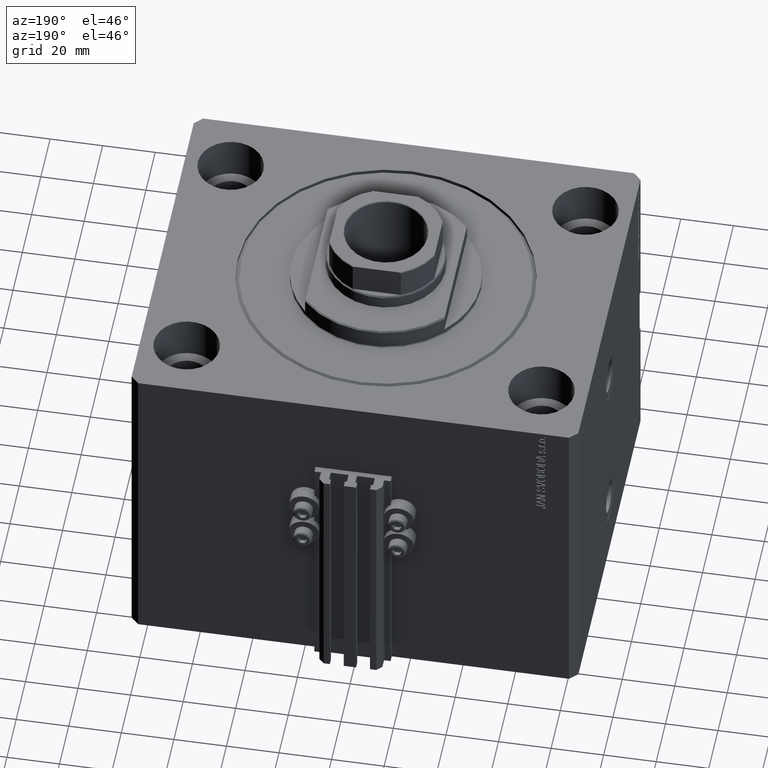
[diagram: clean part render]
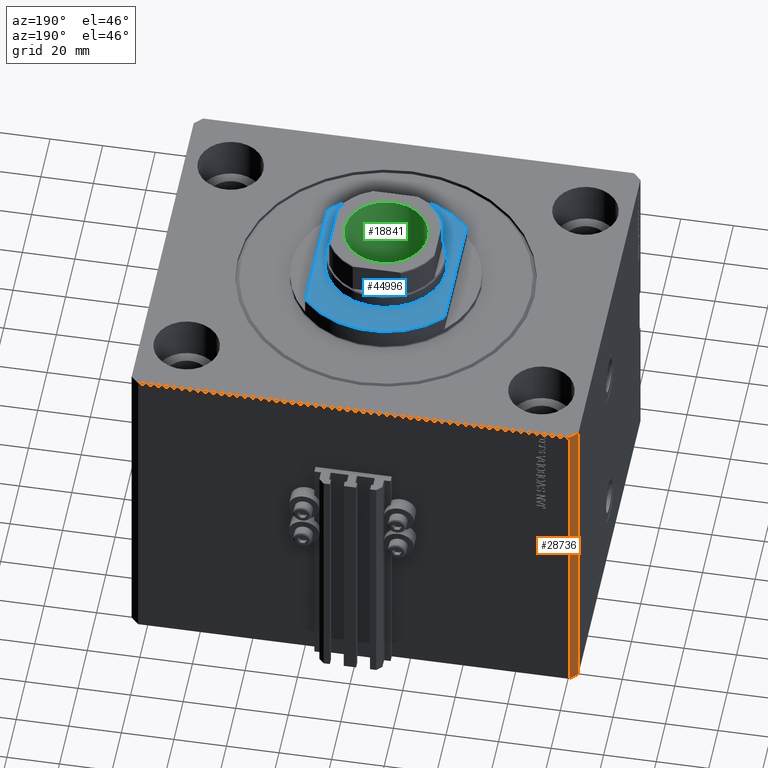
[diagram: same view with three faces highlighted in distinct colors, each labeled with its STEP entity id]
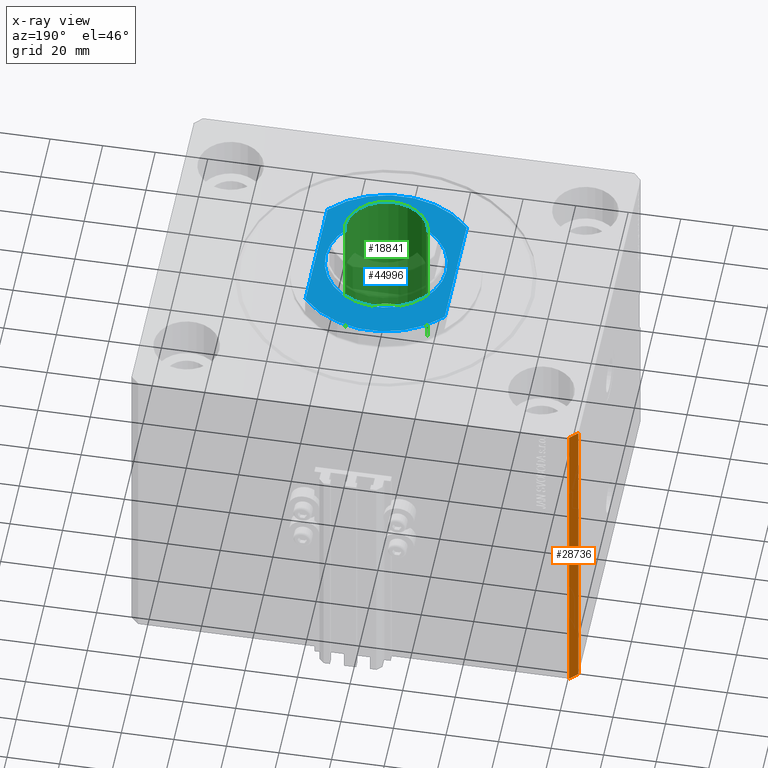
[diagram: x-ray of the same camera — body ghosted, the three highlighted faces saturated]
A machine part, auxiliary view with three faces highlighted in distinct colors.
The next image is the same camera in x-ray (body ghosted, the three faces saturated) — at least one of them is partly hidden behind the body in this view.
Their STEP definitions:

[orange] entity #28736 — the highlighted planar face has unit normal (-0.7071, 0.7071, 0).
#144 = EDGE_LOOP ( 'NONE', ( #18318, #41350, #44819, #2580 ) ) ;
#514 = VERTEX_POINT ( 'NONE', #37268 ) ;
#2580 = ORIENTED_EDGE ( 'NONE', *, *, #29358, .T. ) ;
#3191 = CARTESIAN_POINT ( 'NONE',  ( -82.00000000000000000, 70.00000000000000000, -130.0000000000000000 ) ) ;
#3487 = CARTESIAN_POINT ( 'NONE',  ( -82.00000000000000000, 70.00000000000000000, 0.000000000000000000 ) ) ;
#5124 = DIRECTION ( 'NONE',  ( -0.7071067811865474617, -0.7071067811865474617, 0.000000000000000000 ) ) ;
#12799 = CARTESIAN_POINT ( 'NONE',  ( -82.00000000000000000, 70.00000000000000000, -130.0000000000000000 ) ) ;
#14718 = VERTEX_POINT ( 'NONE', #27319 ) ;
#15348 = VERTEX_POINT ( 'NONE', #3487 ) ;
#15551 = LINE ( 'NONE', #15795, #26975 ) ;
#15795 = CARTESIAN_POINT ( 'NONE',  ( -85.00000000000000000, 67.00000000000000000, -130.0000000000000000 ) ) ;
#18318 = ORIENTED_EDGE ( 'NONE', *, *, #28681, .F. ) ;
#19146 = AXIS2_PLACEMENT_3D ( 'NONE', #38679, #20300, #5124 ) ;
#19576 = DIRECTION ( 'NONE',  ( -0.7071067811865474617, -0.7071067811865474617, 0.000000000000000000 ) ) ;
#20300 = DIRECTION ( 'NONE',  ( -0.7071067811865475727, 0.7071067811865475727, 0.000000000000000000 ) ) ;
#20547 = FACE_OUTER_BOUND ( 'NONE', #144, .T. ) ;
#23816 = DIRECTION ( 'NONE',  ( -0.7071067811865474617, -0.7071067811865474617, 0.000000000000000000 ) ) ;
#24626 = VECTOR ( 'NONE', #19576, 1000.000000000000114 ) ;
#26975 = VECTOR ( 'NONE', #30745, 1000.000000000000000 ) ;
#27319 = CARTESIAN_POINT ( 'NONE',  ( -85.00000000000000000, 67.00000000000000000, -130.0000000000000000 ) ) ;
#27742 = VECTOR ( 'NONE', #34709, 1000.000000000000000 ) ;
#28681 = EDGE_CURVE ( 'NONE', #15348, #514, #31820, .T. ) ;
#28736 = ADVANCED_FACE ( 'NONE', ( #20547 ), #46519, .T. ) ;
#29017 = EDGE_CURVE ( 'NONE', #30934, #15348, #46216, .T. ) ;
#29358 = EDGE_CURVE ( 'NONE', #14718, #514, #15551, .T. ) ;
#30745 = DIRECTION ( 'NONE',  ( 0.000000000000000000, 0.000000000000000000, 1.000000000000000000 ) ) ;
#30934 = VERTEX_POINT ( 'NONE', #3191 ) ;
#31820 = LINE ( 'NONE', #46762, #24626 ) ;
#34468 = CARTESIAN_POINT ( 'NONE',  ( -82.00000000000000000, 70.00000000000000000, -130.0000000000000000 ) ) ;
#34709 = DIRECTION ( 'NONE',  ( 0.000000000000000000, 0.000000000000000000, 1.000000000000000000 ) ) ;
#37268 = CARTESIAN_POINT ( 'NONE',  ( -85.00000000000000000, 67.00000000000000000, 0.000000000000000000 ) ) ;
#37814 = VECTOR ( 'NONE', #23816, 1000.000000000000114 ) ;
#38679 = CARTESIAN_POINT ( 'NONE',  ( -82.00000000000000000, 70.00000000000000000, -130.0000000000000000 ) ) ;
#41350 = ORIENTED_EDGE ( 'NONE', *, *, #29017, .F. ) ;
#44819 = ORIENTED_EDGE ( 'NONE', *, *, #47603, .T. ) ;
#45872 = LINE ( 'NONE', #12799, #37814 ) ;
#46216 = LINE ( 'NONE', #34468, #27742 ) ;
#46519 = PLANE ( 'NONE',  #19146 ) ;
#46762 = CARTESIAN_POINT ( 'NONE',  ( -82.00000000000000000, 70.00000000000000000, 0.000000000000000000 ) ) ;
#47603 = EDGE_CURVE ( 'NONE', #30934, #14718, #45872, .T. ) ;

[blue] entity #44996 — the highlighted planar face has unit normal (0, 0, 1).
#92 = ORIENTED_EDGE ( 'NONE', *, *, #31996, .T. ) ;
#713 = VERTEX_POINT ( 'NONE', #40898 ) ;
#1130 = CARTESIAN_POINT ( 'NONE',  ( 0.000000000000000000, 0.000000000000000000, -8.000000000000000000 ) ) ;
#1260 = CARTESIAN_POINT ( 'NONE',  ( -26.50000000000000000, 23.62202362203536765, -8.000000000000000000 ) ) ;
#2184 = LINE ( 'NONE', #6359, #25236 ) ;
#2801 = CARTESIAN_POINT ( 'NONE',  ( 0.000000000000000000, 0.000000000000000000, -8.000000000000000000 ) ) ;
#3838 = AXIS2_PLACEMENT_3D ( 'NONE', #4866, #16364, #46008 ) ;
#4866 = CARTESIAN_POINT ( 'NONE',  ( 0.000000000000000000, 0.000000000000000000, -8.000000000000000000 ) ) ;
#5734 = VERTEX_POINT ( 'NONE', #14921 ) ;
#6060 = EDGE_CURVE ( 'NONE', #7131, #713, #34934, .T. ) ;
#6359 = CARTESIAN_POINT ( 'NONE',  ( 26.50000000000000000, -36.36963018783666257, -8.000000000000000000 ) ) ;
#6978 = DIRECTION ( 'NONE',  ( -1.000000000000000000, 0.000000000000000000, 0.000000000000000000 ) ) ;
#7131 = VERTEX_POINT ( 'NONE', #45655 ) ;
#11459 = FACE_BOUND ( 'NONE', #12227, .T. ) ;
#11607 = AXIS2_PLACEMENT_3D ( 'NONE', #46755, #35719, #24215 ) ;
#12227 = EDGE_LOOP ( 'NONE', ( #27075, #92 ) ) ;
#12787 = EDGE_CURVE ( 'NONE', #13395, #5734, #41312, .T. ) ;
#13395 = VERTEX_POINT ( 'NONE', #21709 ) ;
#13818 = AXIS2_PLACEMENT_3D ( 'NONE', #48117, #48357, #37094 ) ;
#14541 = CARTESIAN_POINT ( 'NONE',  ( -26.50000000000000000, -36.36963018783666257, -8.000000000000000000 ) ) ;
#14921 = CARTESIAN_POINT ( 'NONE',  ( 23.00000000000001776, 2.816687638038914718E-15, -8.000000000000000000 ) ) ;
#16364 = DIRECTION ( 'NONE',  ( 0.000000000000000000, 0.000000000000000000, -1.000000000000000000 ) ) ;
#19993 = DIRECTION ( 'NONE',  ( 0.000000000000000000, 0.000000000000000000, -1.000000000000000000 ) ) ;
#21187 = ORIENTED_EDGE ( 'NONE', *, *, #27055, .T. ) ;
#21285 = DIRECTION ( 'NONE',  ( 0.000000000000000000, -1.000000000000000000, -0.000000000000000000 ) ) ;
#21709 = CARTESIAN_POINT ( 'NONE',  ( -23.00000000000001776, 0.000000000000000000, -8.000000000000000000 ) ) ;
#23804 = ORIENTED_EDGE ( 'NONE', *, *, #6060, .T. ) ;
#24215 = DIRECTION ( 'NONE',  ( -1.000000000000000000, 0.000000000000000000, 0.000000000000000000 ) ) ;
#25236 = VECTOR ( 'NONE', #21285, 1000.000000000000000 ) ;
#25640 = AXIS2_PLACEMENT_3D ( 'NONE', #2801, #47621, #6978 ) ;
#27055 = EDGE_CURVE ( 'NONE', #37704, #7131, #2184, .T. ) ;
#27075 = ORIENTED_EDGE ( 'NONE', *, *, #12787, .T. ) ;
#31996 = EDGE_CURVE ( 'NONE', #5734, #13395, #45238, .T. ) ;
#33650 = DIRECTION ( 'NONE',  ( -0.000000000000000000, -1.000000000000000000, -0.000000000000000000 ) ) ;
#34041 = EDGE_CURVE ( 'NONE', #43263, #37704, #43723, .T. ) ;
#34392 = VECTOR ( 'NONE', #33650, 1000.000000000000000 ) ;
#34934 = CIRCLE ( 'NONE', #13818, 35.49999999999996447 ) ;
#35680 = EDGE_CURVE ( 'NONE', #43263, #713, #48101, .T. ) ;
#35719 = DIRECTION ( 'NONE',  ( -0.000000000000000000, -0.000000000000000000, 1.000000000000000000 ) ) ;
#37094 = DIRECTION ( 'NONE',  ( -1.000000000000000000, 0.000000000000000000, 0.000000000000000000 ) ) ;
#37704 = VERTEX_POINT ( 'NONE', #48120 ) ;
#39321 = AXIS2_PLACEMENT_3D ( 'NONE', #1130, #19993, #40247 ) ;
#39478 = ORIENTED_EDGE ( 'NONE', *, *, #34041, .T. ) ;
#40059 = EDGE_LOOP ( 'NONE', ( #39478, #21187, #23804, #44823 ) ) ;
#40247 = DIRECTION ( 'NONE',  ( -1.000000000000000000, 0.000000000000000000, -0.000000000000000000 ) ) ;
#40898 = CARTESIAN_POINT ( 'NONE',  ( -26.50000000000000711, -23.62202362203537476, -8.000000000000000000 ) ) ;
#41312 = CIRCLE ( 'NONE', #25640, 23.00000000000001776 ) ;
#41335 = FACE_OUTER_BOUND ( 'NONE', #40059, .T. ) ;
#43024 = PLANE ( 'NONE',  #39321 ) ;
#43263 = VERTEX_POINT ( 'NONE', #1260 ) ;
#43723 = CIRCLE ( 'NONE', #3838, 35.49999999999996447 ) ;
#44823 = ORIENTED_EDGE ( 'NONE', *, *, #35680, .F. ) ;
#44996 = ADVANCED_FACE ( 'NONE', ( #11459, #41335 ), #43024, .T. ) ;
#45238 = CIRCLE ( 'NONE', #11607, 23.00000000000001776 ) ;
#45655 = CARTESIAN_POINT ( 'NONE',  ( 26.50000000000000000, -23.62202362203536765, -8.000000000000000000 ) ) ;
#46008 = DIRECTION ( 'NONE',  ( -1.000000000000000000, 0.000000000000000000, 0.000000000000000000 ) ) ;
#46755 = CARTESIAN_POINT ( 'NONE',  ( 0.000000000000000000, 0.000000000000000000, -8.000000000000000000 ) ) ;
#47621 = DIRECTION ( 'NONE',  ( -0.000000000000000000, -0.000000000000000000, 1.000000000000000000 ) ) ;
#48101 = LINE ( 'NONE', #14541, #34392 ) ;
#48117 = CARTESIAN_POINT ( 'NONE',  ( 0.000000000000000000, 0.000000000000000000, -8.000000000000000000 ) ) ;
#48120 = CARTESIAN_POINT ( 'NONE',  ( 26.50000000000000000, 23.62202362203536765, -8.000000000000000000 ) ) ;
#48357 = DIRECTION ( 'NONE',  ( 0.000000000000000000, 0.000000000000000000, -1.000000000000000000 ) ) ;

[green] entity #18841 — the highlighted cylindrical surface (partial cylindrical patch) has radius 15.75 mm, axis along (0, 0, 1).
#501 = VECTOR ( 'NONE', #42402, 1000.000000000000000 ) ;
#1377 = CARTESIAN_POINT ( 'NONE',  ( 15.74999999999999289, 0.000000000000000000, 125.8000000000000256 ) ) ;
#1405 = EDGE_CURVE ( 'NONE', #45088, #48278, #4442, .T. ) ;
#4442 = LINE ( 'NONE', #42643, #501 ) ;
#4606 = EDGE_CURVE ( 'NONE', #48278, #46061, #35672, .T. ) ;
#5390 = DIRECTION ( 'NONE',  ( -0.000000000000000000, -0.000000000000000000, 1.000000000000000000 ) ) ;
#10109 = CIRCLE ( 'NONE', #37494, 15.74999999999998934 ) ;
#11147 = ORIENTED_EDGE ( 'NONE', *, *, #15606, .F. ) ;
#11794 = AXIS2_PLACEMENT_3D ( 'NONE', #20799, #5390, #16403 ) ;
#12246 = FACE_OUTER_BOUND ( 'NONE', #30992, .T. ) ;
#12637 = DIRECTION ( 'NONE',  ( 1.000000000000000000, 0.000000000000000000, 0.000000000000000000 ) ) ;
#15081 = CARTESIAN_POINT ( 'NONE',  ( 15.74999999999998934, 0.000000000000000000, 71.10000000000002274 ) ) ;
#15606 = EDGE_CURVE ( 'NONE', #45088, #42569, #10109, .T. ) ;
#15774 = VECTOR ( 'NONE', #38985, 1000.000000000000000 ) ;
#16403 = DIRECTION ( 'NONE',  ( 1.000000000000000000, 0.000000000000000000, 0.000000000000000000 ) ) ;
#18841 = ADVANCED_FACE ( 'NONE', ( #12246 ), #27669, .F. ) ;
#20378 = ORIENTED_EDGE ( 'NONE', *, *, #4606, .T. ) ;
#20514 = CARTESIAN_POINT ( 'NONE',  ( -15.74999999999999289, 1.928818708657080556E-15, 125.8000000000000256 ) ) ;
#20630 = DIRECTION ( 'NONE',  ( 1.000000000000000000, 0.000000000000000000, 0.000000000000000000 ) ) ;
#20799 = CARTESIAN_POINT ( 'NONE',  ( 0.000000000000000000, 0.000000000000000000, 126.1000000000000227 ) ) ;
#21625 = CARTESIAN_POINT ( 'NONE',  ( -15.74999999999998934, 1.928818708657080161E-15, 71.10000000000002274 ) ) ;
#23813 = CARTESIAN_POINT ( 'NONE',  ( 0.000000000000000000, 0.000000000000000000, 125.8000000000000256 ) ) ;
#27669 = CYLINDRICAL_SURFACE ( 'NONE', #11794, 15.74999999999999289 ) ;
#28436 = LINE ( 'NONE', #35778, #15774 ) ;
#30207 = AXIS2_PLACEMENT_3D ( 'NONE', #23813, #30926, #20630 ) ;
#30926 = DIRECTION ( 'NONE',  ( 0.000000000000000000, 0.000000000000000000, 1.000000000000000000 ) ) ;
#30992 = EDGE_LOOP ( 'NONE', ( #11147, #42923, #20378, #46631 ) ) ;
#35672 = CIRCLE ( 'NONE', #30207, 15.74999999999999289 ) ;
#35778 = CARTESIAN_POINT ( 'NONE',  ( 15.74999999999999289, 0.000000000000000000, 126.1000000000000227 ) ) ;
#37494 = AXIS2_PLACEMENT_3D ( 'NONE', #38600, #46681, #12637 ) ;
#38600 = CARTESIAN_POINT ( 'NONE',  ( 0.000000000000000000, 0.000000000000000000, 71.10000000000002274 ) ) ;
#38985 = DIRECTION ( 'NONE',  ( -0.000000000000000000, -0.000000000000000000, 1.000000000000000000 ) ) ;
#42402 = DIRECTION ( 'NONE',  ( -0.000000000000000000, -0.000000000000000000, 1.000000000000000000 ) ) ;
#42569 = VERTEX_POINT ( 'NONE', #15081 ) ;
#42643 = CARTESIAN_POINT ( 'NONE',  ( -15.74999999999999289, 1.928818708657080556E-15, 126.1000000000000227 ) ) ;
#42923 = ORIENTED_EDGE ( 'NONE', *, *, #1405, .T. ) ;
#44281 = EDGE_CURVE ( 'NONE', #42569, #46061, #28436, .T. ) ;
#45088 = VERTEX_POINT ( 'NONE', #21625 ) ;
#46061 = VERTEX_POINT ( 'NONE', #1377 ) ;
#46631 = ORIENTED_EDGE ( 'NONE', *, *, #44281, .F. ) ;
#46681 = DIRECTION ( 'NONE',  ( -0.000000000000000000, -0.000000000000000000, 1.000000000000000000 ) ) ;
#48278 = VERTEX_POINT ( 'NONE', #20514 ) ;